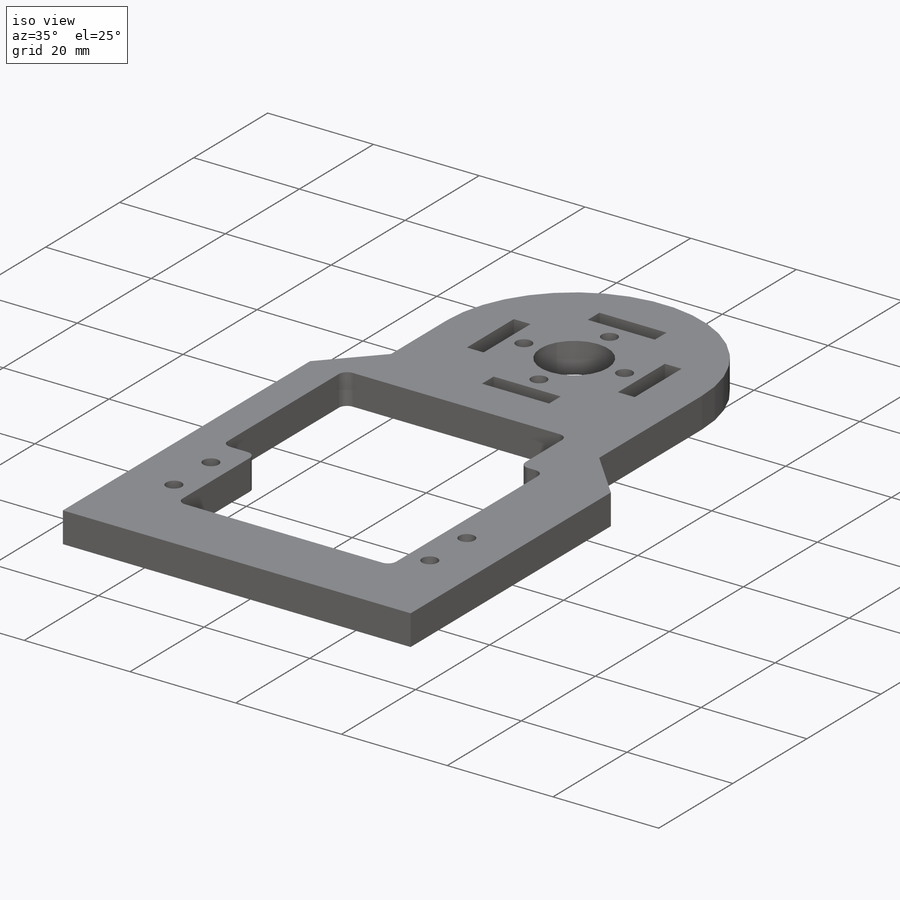
[diagram: iso view]
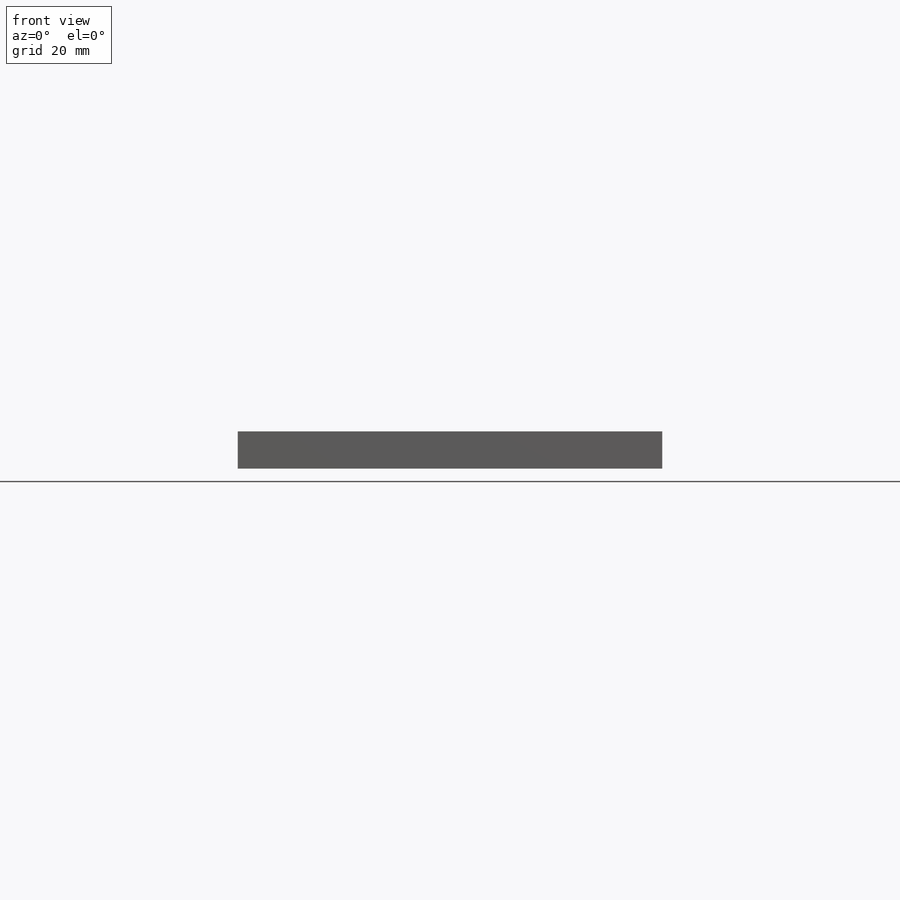
[diagram: front view]
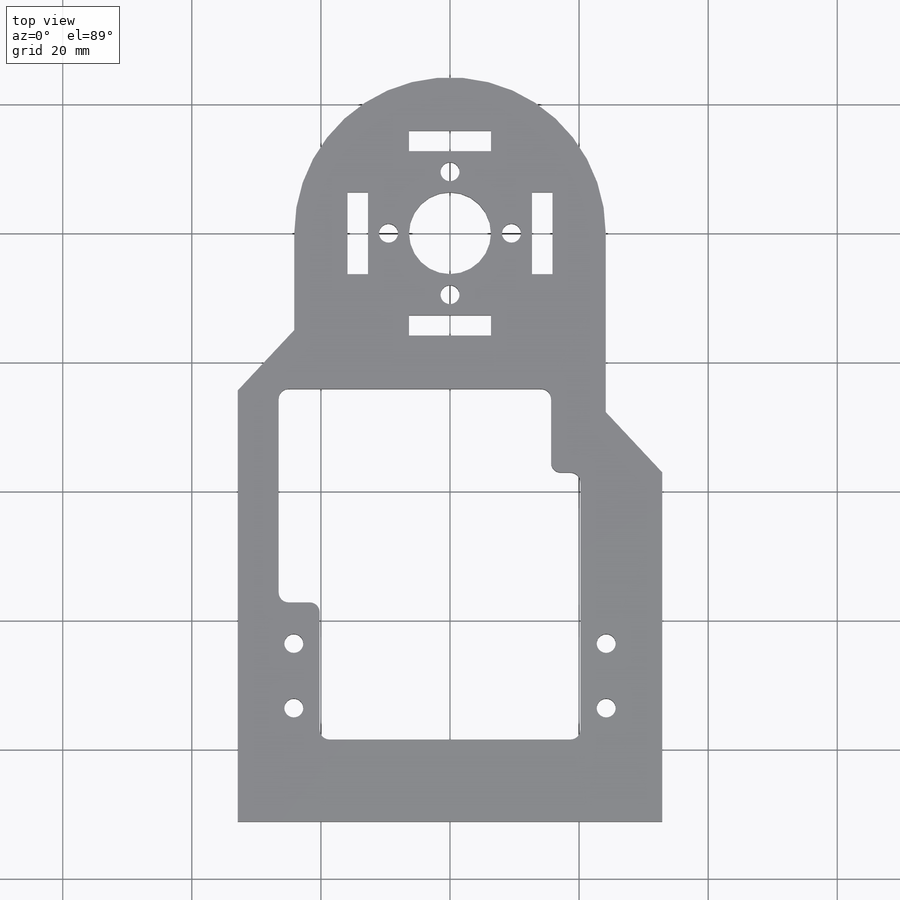
[diagram: top view]
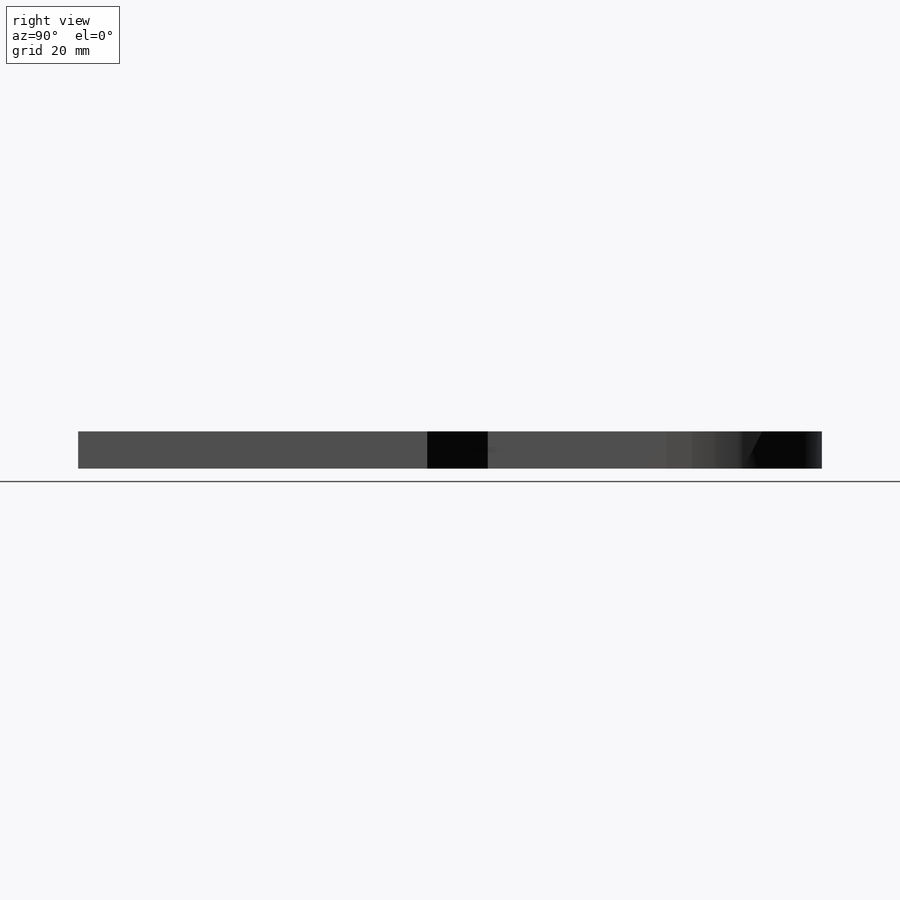
[diagram: right view]
SOLIDWORKS PART (.sldprt)
format: sldprt  version: not decoded by parser v0  size: 868,864 bytes
history: native  units: mm
features: sketch x16, extrude x4, hole x4, cut_extrude x3, material x1, pattern_circular x1, fillet x1 (+12 scaffold rows collapsed)
feature tree (42):
  scaffold x12  (default folders/planes/origin — collapsed)
  material  "Material <not specified>"
  sketch  "Sketch2"  dims[c1.D1=38.1mm c1.D2=~43.366508mm c1.D3=12.7mm c1.D4=31.75mm c2.D2=3.175mm]
  extrude  "Boss-Extrude1"  Depth=2.9718mm
  sketch  "Sketch5"  dims[D2=1.524mm D3=3.9624mm D4=25.4mm D1=7.9375mm]
  hole  "1/16 (0.0625) Press Dowel Hole1"  Diameter=1.524mm Depth=3.176mm
  sketch  "Sketch7"
  sketch  "Sketch6"  dims[hole-wizard template sketch: 59 standard entries collapsed; hole parameters kept: c18.Thru Hole Dia.=1.524mm c18.Thru Hole Depth=3.176mm]
  hole  "#4 Clearance Hole1"  Diameter=2.9464mm Depth=3.175mm
  sketch  "Sketch9"
  sketch  "Sketch8"  dims[hole-wizard template sketch: 60 standard entries collapsed; hole parameters kept: c18.Thru Hole Depth=3.175mm]
  sketch  "Sketch13"  dims[D1=6.35mm]
  cut_extrude  "Cut-Extrude3"  [1 undecoded]
  sketch  "Sketch10"  dims[c1.D1=3.175mm c1.D2=7.9375mm c1.D3=9.525mm c1.D4=14.2875mm c2.D3=19.05mm c2.D1=3.175mm c2.D2=25.4mm c3.D3=12.7mm]
  cut_extrude  "Cut-Extrude2"  [1 undecoded]
  hole  "#4 Clearance Hole2"  Diameter=2.9464mm Depth=2.9728mm
  sketch  "Sketch15"  dims[D1=9.525mm]
  sketch  "Sketch14"  dims[hole-wizard template sketch: 60 standard entries collapsed; hole parameters kept: c18.Thru Hole Depth=2.9728mm]
  pattern_circular  "CirPattern2"  Count=4 Angle=90deg
  sketch  "Sketch16"  dims[c1.D7=3.4036mm c1.D1=15.24mm c1.D2=58.674mm c1.D3=19.6977mm c2.D1=31.3182mm c2.D3=19.8mm c2.D4=40.386mm c2.D5=~9.823386mm c2.D2=58.674mm c3.D5=48.4mm c3.D6=10.0mm c3.D8=12.7mm c3.D9=6.35mm c3.D10=12.7mm c3.D2=68.574mm c3.D3=21.59mm c4.D9=19.8mm]
  extrude  "Boss-Extrude2"  [1 undecoded]
  sketch  "Sketch32"  dims[D1=~5.771092mm]
  extrude  "Boss-Extrude4"  [1 undecoded]
  hole  "#4 Clearance Hole3"  Diameter=2.9464mm Depth=5.7658mm
  sketch  "Sketch29"
  sketch  "Sketch28"  dims[hole-wizard template sketch: 60 standard entries collapsed; hole parameters kept: c18.Thru Hole Depth=5.7658mm]
  sketch  "Sketch31"  dims[D1=12.7mm D2=~5.808195mm]
  extrude  "Boss-Extrude3"  [1 undecoded]
  sketch  "Sketch30"  dims[D1=6.35mm D2=6.35mm]
  cut_extrude  "Cut-Extrude4"  [1 undecoded]
  fillet  "Fillet2"  Radius=1.524mm
decode coverage: 20 of 29 modeling features carry decoded parameters
note: ~ marks probable driven/reference dimensions
note: 6 parameter values undecoded
summary: no parameter record found for 6 features; Diameter pulled from absorbed wizard sketch
note: suppression state not decoded; provenance and decode notes live in map.json
